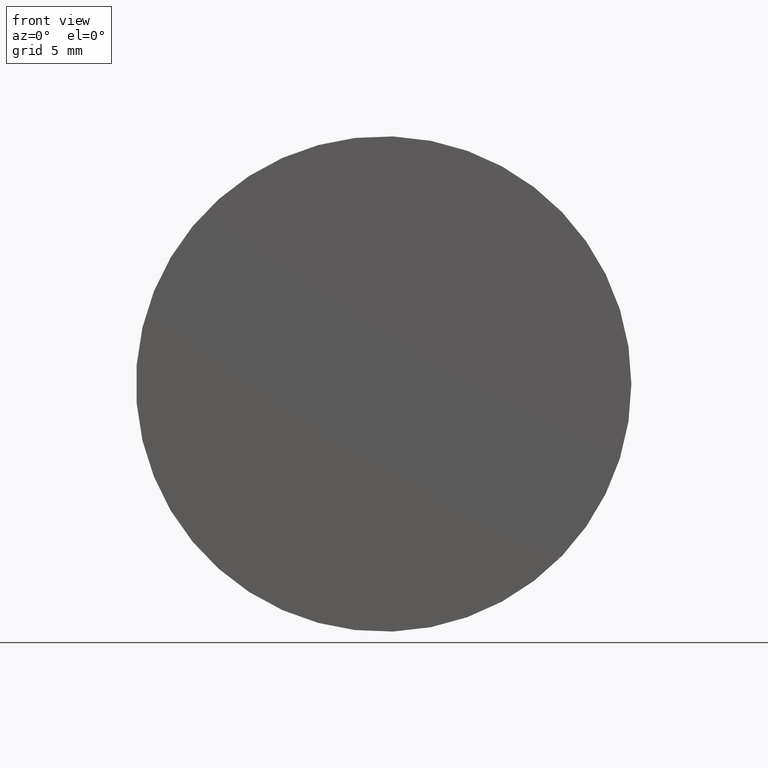
[diagram: clean part render]
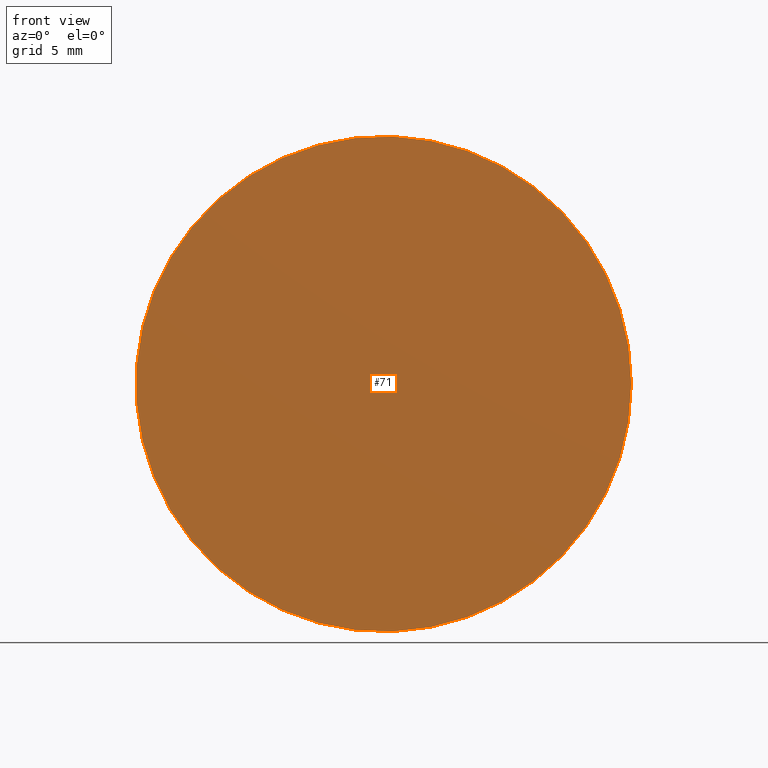
[diagram: same view with one face highlighted and labeled with its STEP entity id]
A machine part, front view. The second image highlights one B-rep face of the part: STEP entity #71.
In plain terms, the highlighted planar face has unit normal (0, -1, 0).
Its self-contained STEP definition (entity closure, byte-faithful):
#19=PLANE('',#84);
#29=FACE_OUTER_BOUND('',#39,.T.);
#39=EDGE_LOOP('',(#64));
#44=CIRCLE('',#83,10.5);
#49=VERTEX_POINT('',#123);
#54=EDGE_CURVE('',#49,#49,#44,.T.);
#64=ORIENTED_EDGE('',*,*,#54,.T.);
#71=ADVANCED_FACE('',(#29),#19,.T.);
#83=AXIS2_PLACEMENT_3D('',#124,#105,#106);
#84=AXIS2_PLACEMENT_3D('',#125,#107,#108);
#105=DIRECTION('center_axis',(0.,-1.,0.));
#106=DIRECTION('ref_axis',(1.,0.,0.));
#107=DIRECTION('center_axis',(0.,-1.,0.));
#108=DIRECTION('ref_axis',(0.,0.,-1.));
#123=CARTESIAN_POINT('',(10.5,0.,0.));
#124=CARTESIAN_POINT('Origin',(0.,0.,0.));
#125=CARTESIAN_POINT('Origin',(0.,0.,0.));